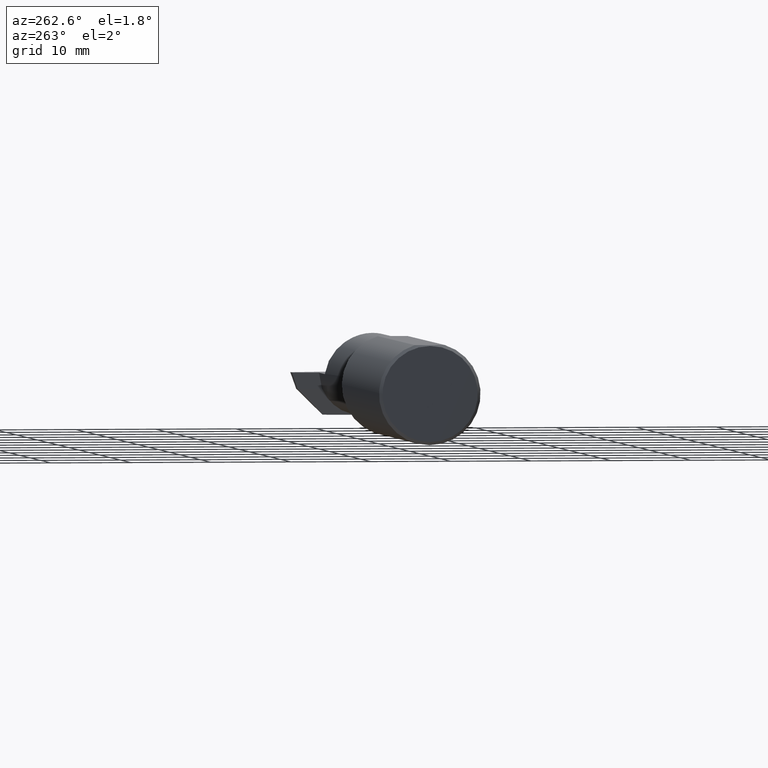
[diagram: clean part render]
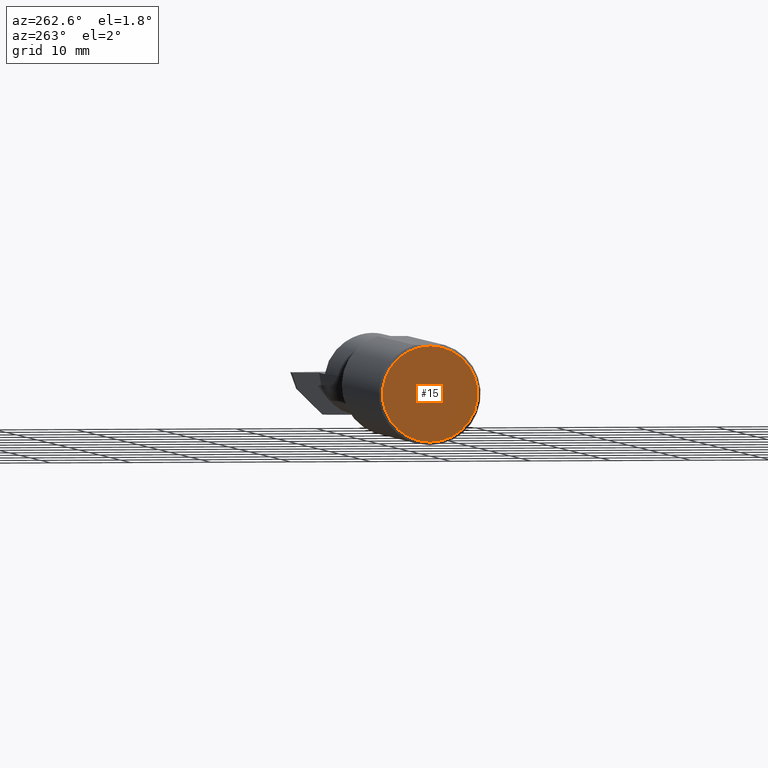
[diagram: same view with one face highlighted and labeled with its STEP entity id]
A machine part, auxiliary view. The second image highlights one B-rep face of the part: STEP entity #15.
In plain terms, the highlighted planar face has unit normal (1, 0, 0).
Its self-contained STEP definition (entity closure, byte-faithful):
#15 = ADVANCED_FACE ( 'NONE', ( #707 ), #338, .F. ) ;
#18 = VERTEX_POINT ( 'NONE', #126 ) ;
#50 = EDGE_CURVE ( 'NONE', #758, #18, #266, .T. ) ;
#54 = AXIS2_PLACEMENT_3D ( 'NONE', #630, #484, #775 ) ;
#68 = ORIENTED_EDGE ( 'NONE', *, *, #188, .T. ) ;
#126 = CARTESIAN_POINT ( 'NONE',  ( 0.000000000000000000, 0.000000000000000000, -0.2348499999999998089 ) ) ;
#142 = CIRCLE ( 'NONE', #629, 0.2348499999999998089 ) ;
#188 = EDGE_CURVE ( 'NONE', #18, #758, #142, .T. ) ;
#193 = DIRECTION ( 'NONE',  ( -1.000000000000000000, -0.000000000000000000, -0.000000000000000000 ) ) ;
#261 = EDGE_LOOP ( 'NONE', ( #68, #466 ) ) ;
#266 = CIRCLE ( 'NONE', #583, 0.2348499999999998089 ) ;
#338 = PLANE ( 'NONE',  #54 ) ;
#466 = ORIENTED_EDGE ( 'NONE', *, *, #50, .T. ) ;
#484 = DIRECTION ( 'NONE',  ( 1.000000000000000000, 0.000000000000000000, 0.000000000000000000 ) ) ;
#488 = DIRECTION ( 'NONE',  ( -1.000000000000000000, -0.000000000000000000, -0.000000000000000000 ) ) ;
#557 = DIRECTION ( 'NONE',  ( 0.000000000000000000, 0.000000000000000000, -1.000000000000000000 ) ) ;
#583 = AXIS2_PLACEMENT_3D ( 'NONE', #856, #488, #641 ) ;
#629 = AXIS2_PLACEMENT_3D ( 'NONE', #702, #193, #557 ) ;
#630 = CARTESIAN_POINT ( 'NONE',  ( 0.000000000000000000, 0.000000000000000000, 0.000000000000000000 ) ) ;
#641 = DIRECTION ( 'NONE',  ( 0.000000000000000000, 0.000000000000000000, -1.000000000000000000 ) ) ;
#702 = CARTESIAN_POINT ( 'NONE',  ( 0.000000000000000000, 0.000000000000000000, 0.000000000000000000 ) ) ;
#707 = FACE_OUTER_BOUND ( 'NONE', #261, .T. ) ;
#758 = VERTEX_POINT ( 'NONE', #790 ) ;
#775 = DIRECTION ( 'NONE',  ( 0.000000000000000000, 0.000000000000000000, -1.000000000000000000 ) ) ;
#790 = CARTESIAN_POINT ( 'NONE',  ( 0.000000000000000000, 2.967931517733608795E-17, 0.2348499999999998089 ) ) ;
#856 = CARTESIAN_POINT ( 'NONE',  ( 0.000000000000000000, 0.000000000000000000, 0.000000000000000000 ) ) ;